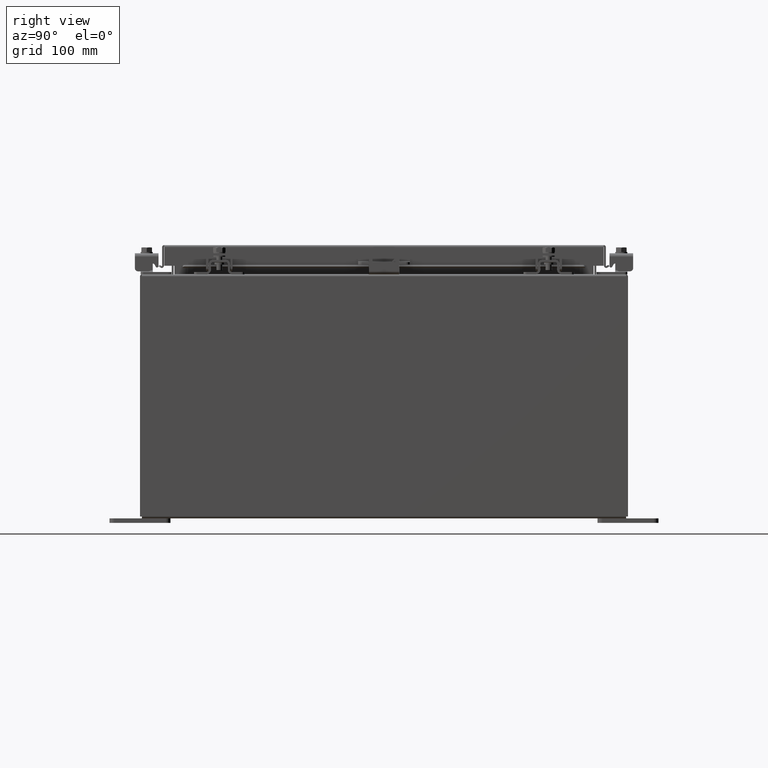
[diagram: clean part render]
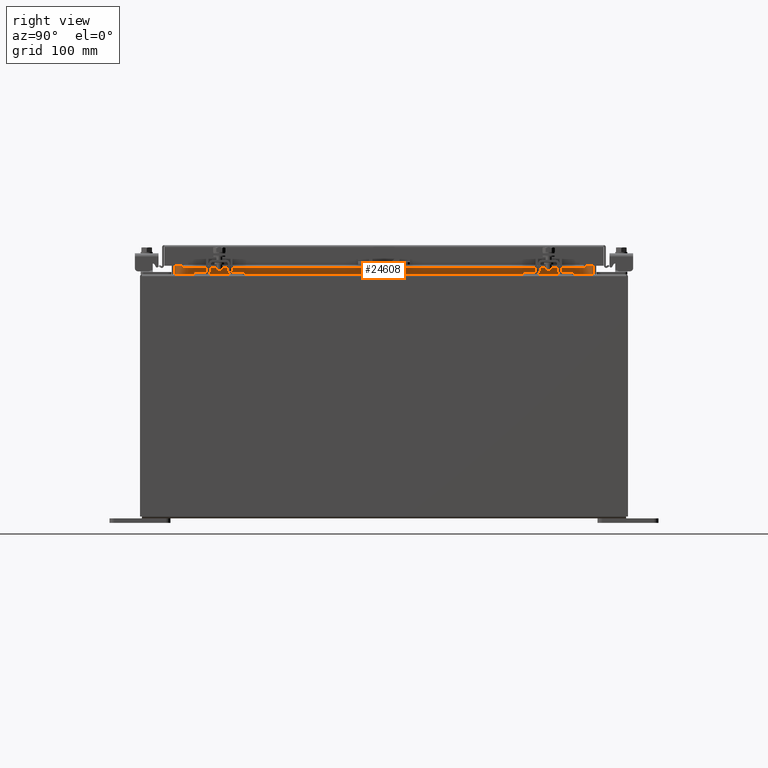
[diagram: same view with one face highlighted and labeled with its STEP entity id]
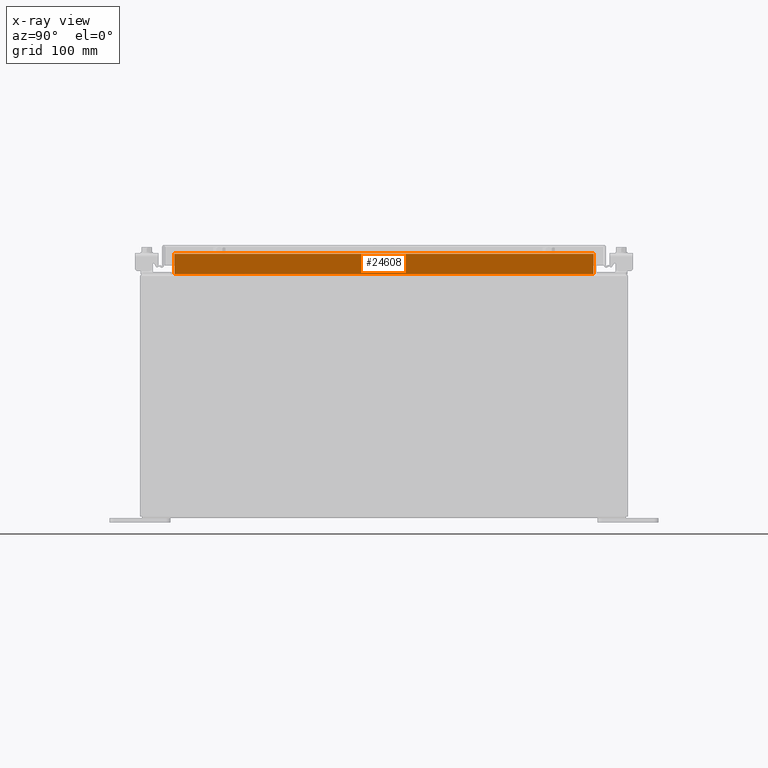
[diagram: x-ray of the same camera — body ghosted, the highlighted face saturated]
A machine part, right view. The second image highlights one B-rep face of the part: STEP entity #24608.
The next image is the same camera in x-ray: the body ghosted, the highlighted face saturated — about 0% of this face is hidden behind the body in this view.
In plain terms, the highlighted planar face has unit normal (1, 0, -0).
Its self-contained STEP definition (entity closure, byte-faithful):
#96 = ORIENTED_EDGE ( 'NONE', *, *, #7043, .F. ) ;
#238 = DIRECTION ( 'NONE',  ( -3.542869979895289700E-015, 0.0000000000000000000, -1.000000000000000000 ) ) ;
#290 = LINE ( 'NONE', #25974, #28414 ) ;
#532 = CARTESIAN_POINT ( 'NONE',  ( 6.699700000000042600, -8.593750000000003600, 10.76290000000000700 ) ) ;
#1138 = CARTESIAN_POINT ( 'NONE',  ( 6.699700000000036400, 8.593749999999994700, 9.925300000000007100 ) ) ;
#2567 = DIRECTION ( 'NONE',  ( 0.0000000000000000000, 1.000000000000000000, 0.0000000000000000000 ) ) ;
#3334 = ORIENTED_EDGE ( 'NONE', *, *, #8789, .F. ) ;
#3420 = DIRECTION ( 'NONE',  ( 3.542869979895298400E-015, -0.0000000000000000000, 1.000000000000000000 ) ) ;
#3450 = DIRECTION ( 'NONE',  ( -3.542869979895289700E-015, -0.0000000000000000000, -1.000000000000000000 ) ) ;
#4933 = CARTESIAN_POINT ( 'NONE',  ( 6.699700000000036400, -8.593750000000005300, 9.938300000000008800 ) ) ;
#5675 = VERTEX_POINT ( 'NONE', #6115 ) ;
#6115 = CARTESIAN_POINT ( 'NONE',  ( 6.699700000000036400, 8.593749999999994700, 9.938300000000008800 ) ) ;
#6739 = VECTOR ( 'NONE', #13503, 39.37007874015748100 ) ;
#7043 = EDGE_CURVE ( 'NONE', #10619, #5675, #15664, .T. ) ;
#7305 = LINE ( 'NONE', #23040, #25415 ) ;
#8789 = EDGE_CURVE ( 'NONE', #22099, #18094, #290, .T. ) ;
#9368 = PLANE ( 'NONE',  #28786 ) ;
#10218 = EDGE_CURVE ( 'NONE', #5675, #22099, #12728, .T. ) ;
#10619 = VERTEX_POINT ( 'NONE', #22004 ) ;
#11492 = FACE_OUTER_BOUND ( 'NONE', #20479, .T. ) ;
#11618 = CARTESIAN_POINT ( 'NONE',  ( 6.699700000000002700, 8.519010677830938800E-016, -2.373616600430448300E-014 ) ) ;
#12373 = ORIENTED_EDGE ( 'NONE', *, *, #10218, .F. ) ;
#12728 = LINE ( 'NONE', #29283, #6739 ) ;
#13503 = DIRECTION ( 'NONE',  ( 5.086204264567646800E-016, -1.000000000000000000, 3.814653198425735100E-016 ) ) ;
#13534 = EDGE_CURVE ( 'NONE', #18094, #10619, #7305, .T. ) ;
#13894 = DIRECTION ( 'NONE',  ( 1.000000000000000000, 1.271551066141907300E-016, -3.542869979895289700E-015 ) ) ;
#15664 = LINE ( 'NONE', #1138, #27023 ) ;
#18094 = VERTEX_POINT ( 'NONE', #532 ) ;
#20479 = EDGE_LOOP ( 'NONE', ( #96, #27025, #3334, #12373 ) ) ;
#22004 = CARTESIAN_POINT ( 'NONE',  ( 6.699700000000040800, 8.593749999999994700, 10.76290000000000700 ) ) ;
#22099 = VERTEX_POINT ( 'NONE', #4933 ) ;
#23040 = CARTESIAN_POINT ( 'NONE',  ( 6.699700000000040800, -8.593750000000003600, 10.76290000000000700 ) ) ;
#24608 = ADVANCED_FACE ( 'NONE', ( #11492 ), #9368, .T. ) ;
#25415 = VECTOR ( 'NONE', #2567, 39.37007874015748100 ) ;
#25974 = CARTESIAN_POINT ( 'NONE',  ( 6.699700000000042600, -8.593750000000003600, 10.85060000000001100 ) ) ;
#27023 = VECTOR ( 'NONE', #3450, 39.37007874015748100 ) ;
#27025 = ORIENTED_EDGE ( 'NONE', *, *, #13534, .F. ) ;
#28414 = VECTOR ( 'NONE', #3420, 39.37007874015748100 ) ;
#28786 = AXIS2_PLACEMENT_3D ( 'NONE', #11618, #13894, #238 ) ;
#29283 = CARTESIAN_POINT ( 'NONE',  ( 6.699700000000035500, 8.593749999999994700, 9.938300000000007000 ) ) ;